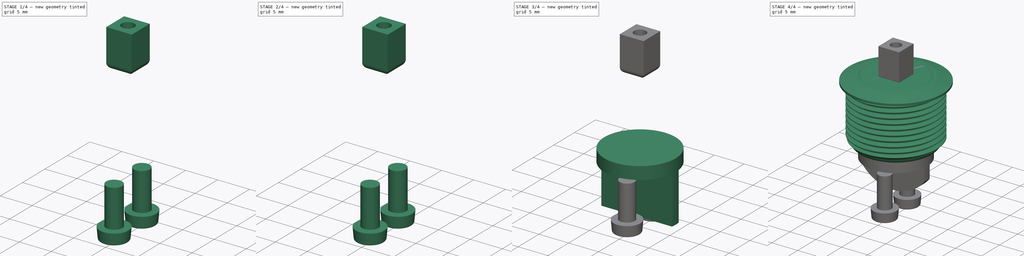
[diagram: build sequence overview — one tinted view per stage of 4, left to right]
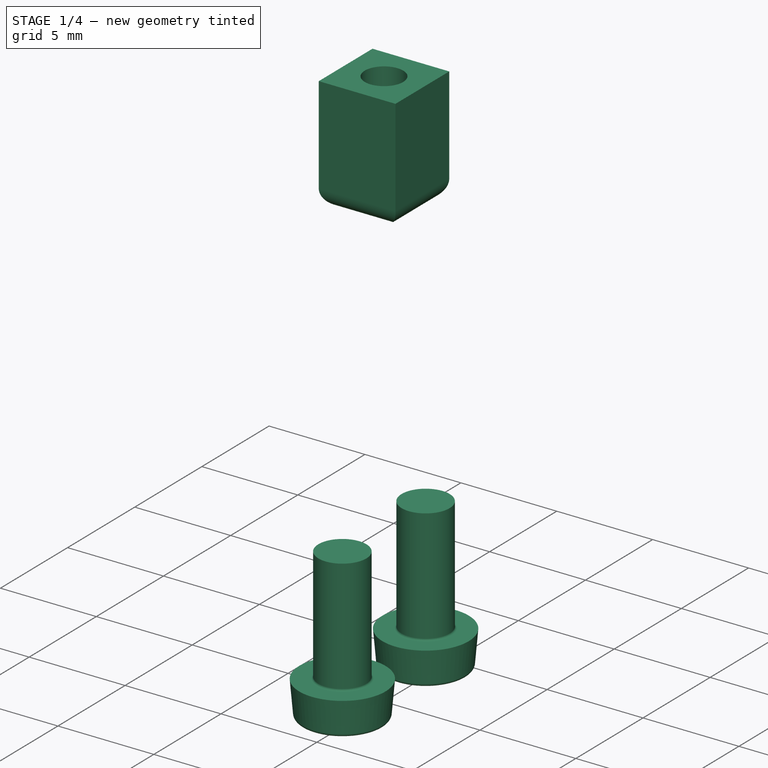
[diagram: stage 1 of 4 — iso view after this stage's code; geometry added in this stage tinted green]
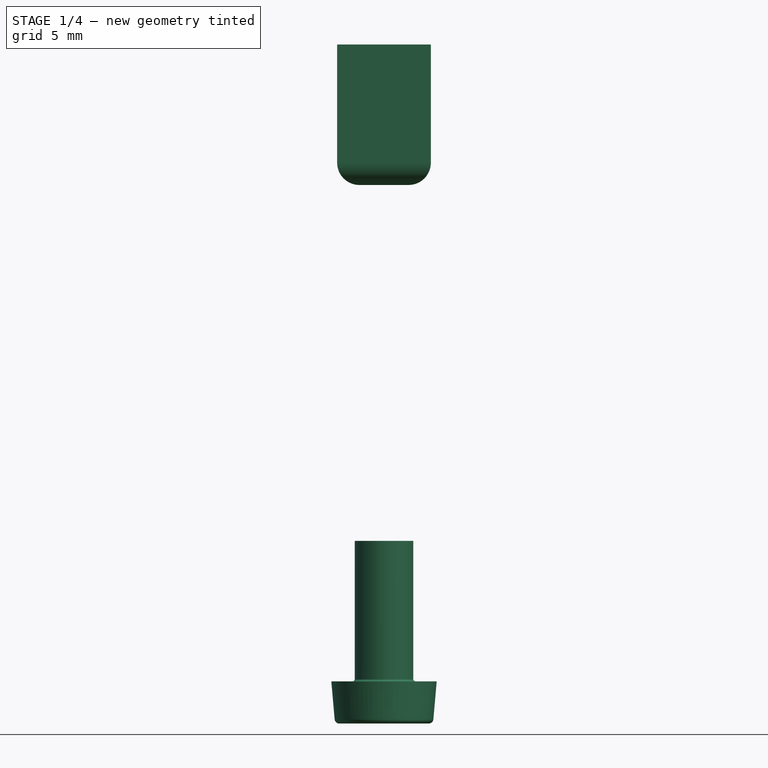
[diagram: stage 1 of 4 — front view after this stage's code; geometry added in this stage tinted green]
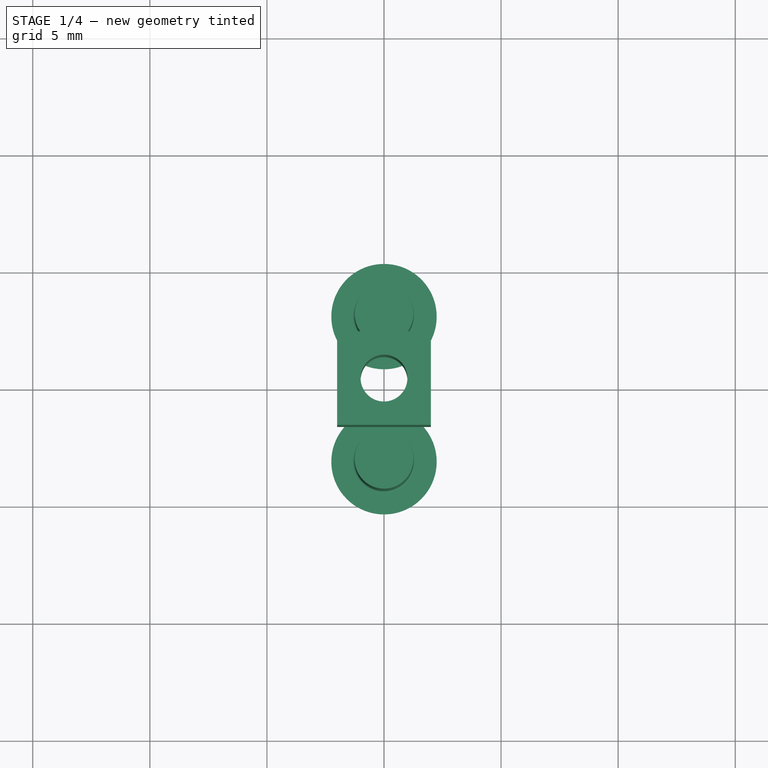
[diagram: stage 1 of 4 — top view after this stage's code; geometry added in this stage tinted green]
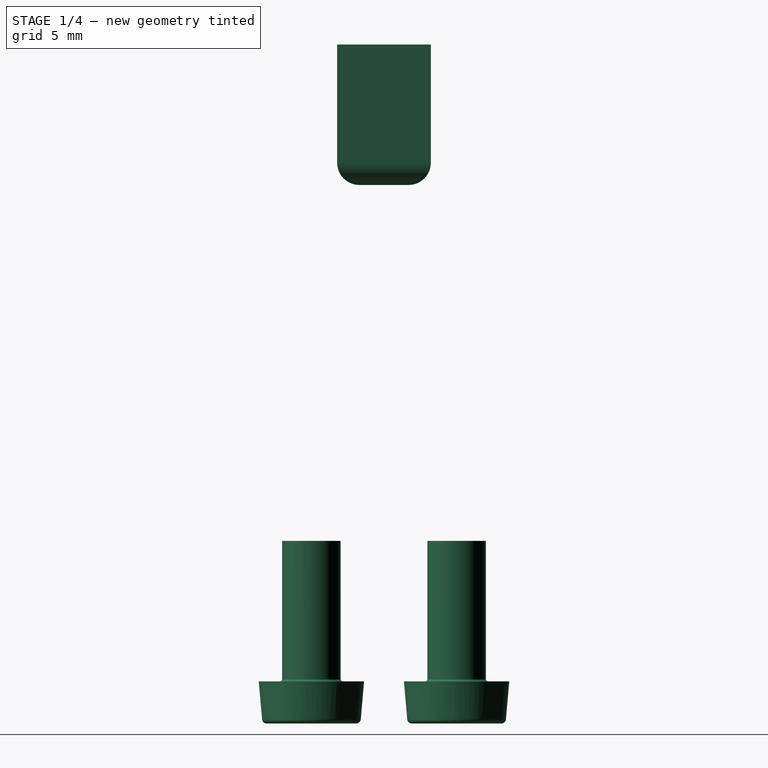
[diagram: stage 1 of 4 — right view after this stage's code; geometry added in this stage tinted green]
FCSTD DOCUMENT  (FreeCAD 0.21R33771 (Git))
Label: ButtonPushSwitch16mm
License: All rights reserved
LicenseURL: http://en.wikipedia.org/wiki/All_rights_reserved
objects: Sketcher::SketchObject×8, PartDesign::Body×6, Part::FeaturePython×3, PartDesign::Revolution×3, PartDesign::Pad×3, PartDesign::Fillet×2, PartDesign::Hole×2, App::Part×2, PartDesign::Pocket×1, Part::Feature×1
note: 40 computed .brp shape members not serialized (recipe doc carries the construction recipe); baked Part::Feature solids carry a one-line shape summary decoded from their .brp

FEATURE [PartDesign::Body] Body004  label="Pin1"
  Group = -> [Sketch005,Pad001,Fillet,Hole]
  Origin = -> Origin004
  Placement = pos=(0,-3,-19) rot=(0,0,1;0rad)
  Tip = -> Hole
FEATURE [Sketcher::SketchObject] Sketch006
  FullyConstrained = true
  MapMode = 5
  Support = -> [XY_Plane005]
  sketch-geometry (5):
    g0: LineSegment StartX=-2 StartY=-2 StartZ=0 EndX=2 EndY=-2 EndZ=0
    g1: LineSegment StartX=2 StartY=-2 StartZ=0 EndX=2 EndY=2 EndZ=0
    g2: LineSegment StartX=2 StartY=2 StartZ=0 EndX=-2 EndY=2 EndZ=0
    g3: LineSegment StartX=-2 StartY=2 StartZ=0 EndX=-2 EndY=-2 EndZ=0
    g4: Circle CenterX=0 CenterY=0 CenterZ=0 NormalX=0 NormalY=0 NormalZ=1 AngleXU=0 Radius=1
  constraints (12):
    c: Coincident(g0,g1)
    c: Coincident(g1,g2)
    c: Coincident(g2,g3)
    c: Coincident(g3,g0)
    c: Horizontal(g0)
    c: Vertical(g3)
    c: Equal(g2,g1)
    c: DistanceX(g2,g2) = 4
    c: Symmetric(g2,g1,g-2)
    c: Symmetric(g1,g0,g-1)
    c: Coincident(g4,g-1)
    c: Radius(g4) = 1
FEATURE [PartDesign::Pad] Pad002
  Direction = (0,0,1)
  Length = 6
  Length2 = 10
  Profile = -> Sketch006
  ReferenceAxis = -> Sketch006 [N_Axis]
  Type = 0
FEATURE [PartDesign::Fillet] Fillet001
  Base = -> Pad002 [Edge11,Edge3,Edge6,Edge9]
  BaseFeature = -> Pad002
  Radius = 0.95
  SupportTransform = false
  UseAllEdges = false
FEATURE [PartDesign::Body] Body005  label="Pin2"
  Group = -> [Sketch006,Pad002,Fillet001,Hole001]
  Origin = -> Origin005
  Placement = pos=(0,3,-19) rot=(0,0,1;0rad)
  Tip = -> Hole001
FEATURE [Part::FeaturePython] Screw  label="M2.5x6-Screw"  # Fasteners workbench fastener (typed FeaturePython)
  Placement = pos=(2.6e-15,3.1,-21.2) rot=(0,1,0;3.14159rad)
  diameter = 1
  invert = false
  leftHanded = false
  length = 3
  lengthCustom = 6
  matchOuter = false
  offset = 0
  thread = false
  type = 78
FEATURE [Part::FeaturePython] Screw001  label="M2.5x6-Screw001"  # Fasteners workbench fastener (typed FeaturePython)
  Placement = pos=(0,-3.1,-21.2) rot=(1,0,0;3.14159rad)
  diameter = 1
  invert = false
  leftHanded = false
  length = 3
  lengthCustom = 6
  matchOuter = false
  offset = 0
  thread = false
  type = 78
FEATURE [Part::Feature] Part__Feature001  label="Fix"
  Placement = pos=(1.76207,-2.99075,7.6065) rot=(0,0,1;0rad)
  shape: bbox 23.06 x 22 x 3.673 mm, 24 faces (baked)
FEATURE [App::Part] Assembly_1  label="Hexagon"
  Group = -> [Part__Feature001]
  Origin = -> Origin006
  Placement = pos=(-1.7,3.1,-13.2) rot=(0,0,1;0rad)
FEATURE [Sketcher::SketchObject] Sketch007
  FullyConstrained = true
  MapMode = 5
  Placement = pos=(0,0,0) rot=(0.57735,0.57735,0.57735;2.0944rad)
  Support = -> [YZ_Plane]
FEATURE [PartDesign::Body] Body001  label="Head"
  Group = -> [Sketch,Revolution,Sketch007]
  Origin = -> Origin
  Tip = -> Revolution
FEATURE [App::Part] Part  label="Assembly"
  Group = -> [Body,ThreadedRod,Body001,Body002,Body003,Body004,Body005,Screw,Screw001,Assembly_1]
  Origin = -> Origin007
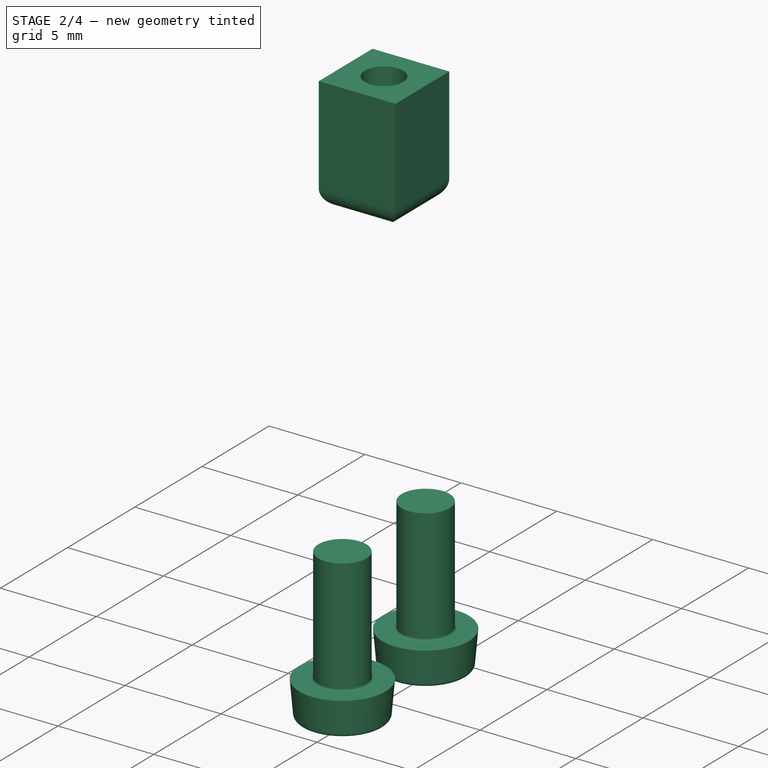
[diagram: stage 2 of 4 — iso view after this stage's code; geometry added in this stage tinted green]
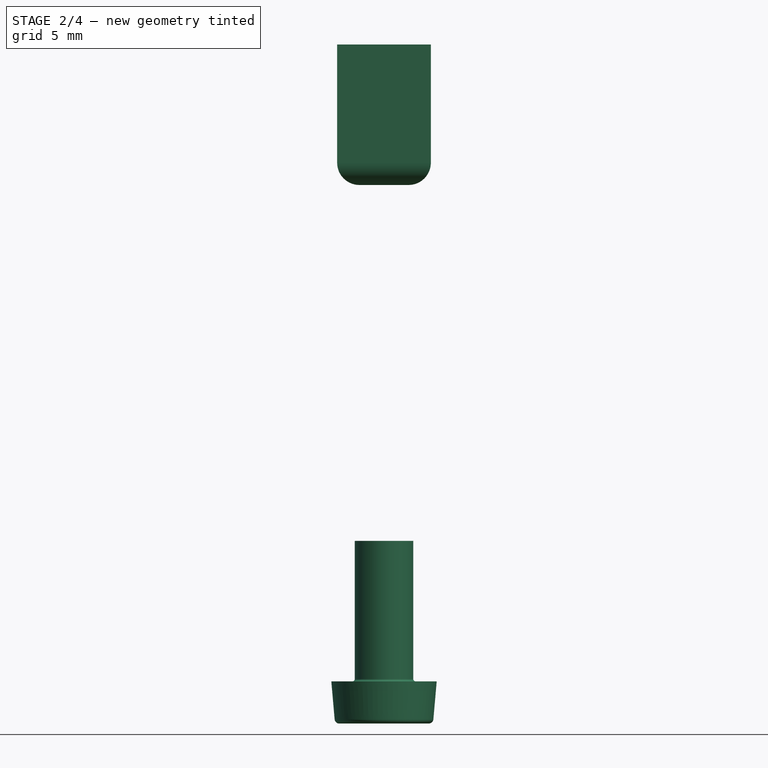
[diagram: stage 2 of 4 — front view after this stage's code; geometry added in this stage tinted green]
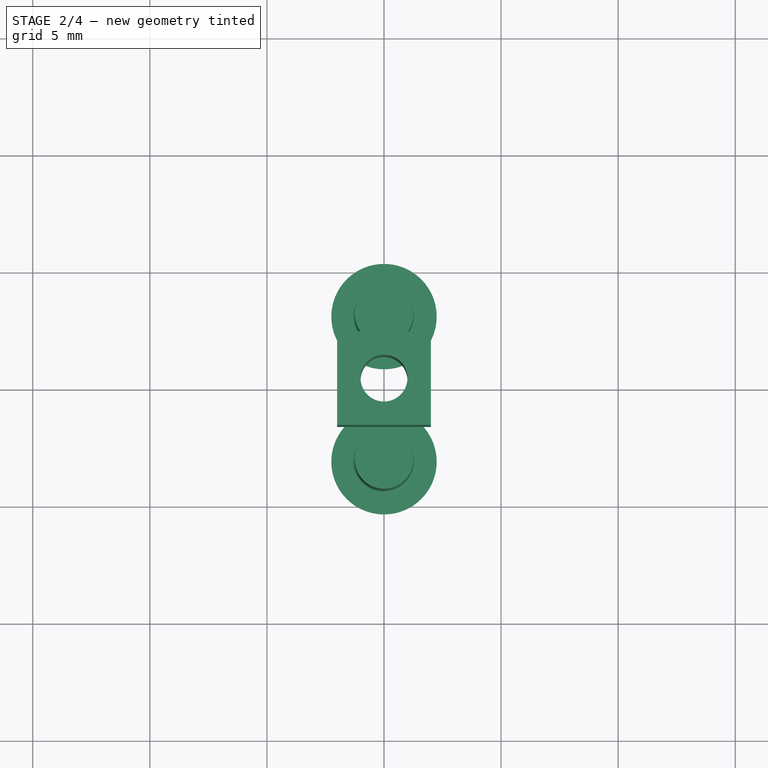
[diagram: stage 2 of 4 — top view after this stage's code; geometry added in this stage tinted green]
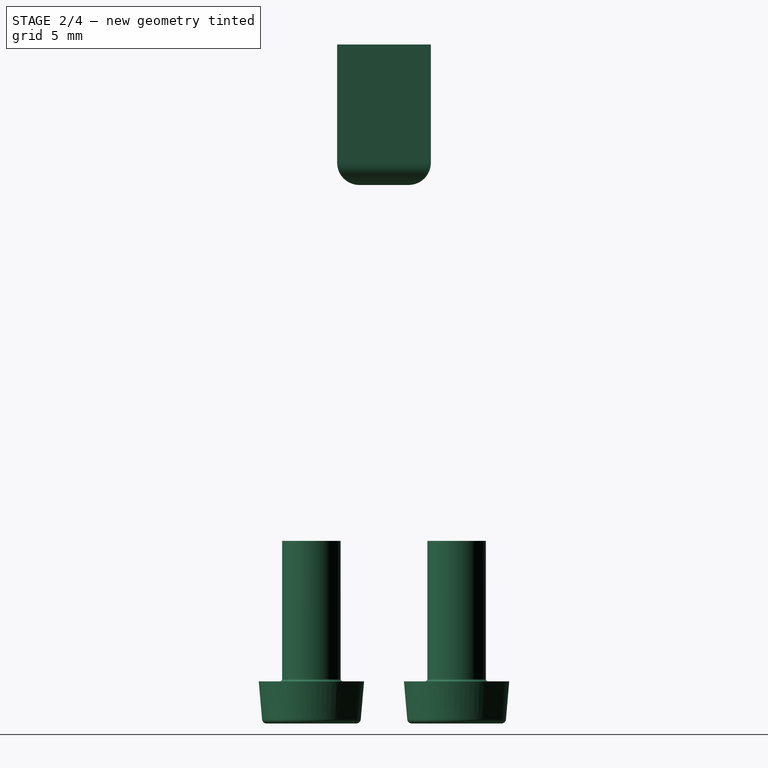
[diagram: stage 2 of 4 — right view after this stage's code; geometry added in this stage tinted green]
FEATURE [PartDesign::Body] Body003  label="Insulator"
  Group = -> [Sketch002,Revolution002,Sketch003,Pad,Sketch004,Pocket]
  Origin = -> Origin003
  Tip = -> Pocket
FEATURE [Sketcher::SketchObject] Sketch005
  FullyConstrained = true
  MapMode = 5
  Support = -> [XY_Plane004]
  sketch-geometry (5):
    g0: LineSegment StartX=-2 StartY=-2 StartZ=0 EndX=2 EndY=-2 EndZ=0
    g1: LineSegment StartX=2 StartY=-2 StartZ=0 EndX=2 EndY=2 EndZ=0
    g2: LineSegment StartX=2 StartY=2 StartZ=0 EndX=-2 EndY=2 EndZ=0
    g3: LineSegment StartX=-2 StartY=2 StartZ=0 EndX=-2 EndY=-2 EndZ=0
    g4: Circle CenterX=0 CenterY=0 CenterZ=0 NormalX=0 NormalY=0 NormalZ=1 AngleXU=0 Radius=1
  constraints (12):
    c: Coincident(g0,g1)
    c: Coincident(g1,g2)
    c: Coincident(g2,g3)
    c: Coincident(g3,g0)
    c: Horizontal(g0)
    c: Vertical(g3)
    c: Equal(g2,g1)
    c: DistanceX(g2,g2) = 4
    c: Symmetric(g2,g1,g-2)
    c: Symmetric(g1,g0,g-1)
    c: Coincident(g4,g-1)
    c: Radius(g4) = 1
FEATURE [PartDesign::Pad] Pad001
  Direction = (0,0,1)
  Length = 6
  Length2 = 10
  Profile = -> Sketch005
  ReferenceAxis = -> Sketch005 [N_Axis]
  Type = 0
FEATURE [PartDesign::Fillet] Fillet
  Base = -> Pad001 [Edge11,Edge3,Edge6,Edge9]
  BaseFeature = -> Pad001
  Radius = 0.95
  SupportTransform = false
  UseAllEdges = false
FEATURE [PartDesign::Hole] Hole001
  BaseFeature = -> Fillet001
  CustomThreadClearance = 0
  Depth = 16.6573
  DepthType = 0
  Diameter = 2.15
  DrillForDepth = false
  DrillPoint = 1
  DrillPointAngle = 118
  HoleCutCountersinkAngle = 90
  HoleCutCustomValues = false
  HoleCutDepth = 0
  HoleCutDiameter = 6.1
  HoleCutType = 0
  ModelThread = false
  Profile = -> Fillet001 [Edge21]
  Tapered = false
  TaperedAngle = 90
  ThreadClass = 0
  ThreadDepth = 16.6573
  ThreadDepthType = 0
  ThreadDirection = 0
  ThreadFit = 0
  ThreadSize = 8
  ThreadType = 2
  Threaded = true
  UseCustomThreadClearance = false
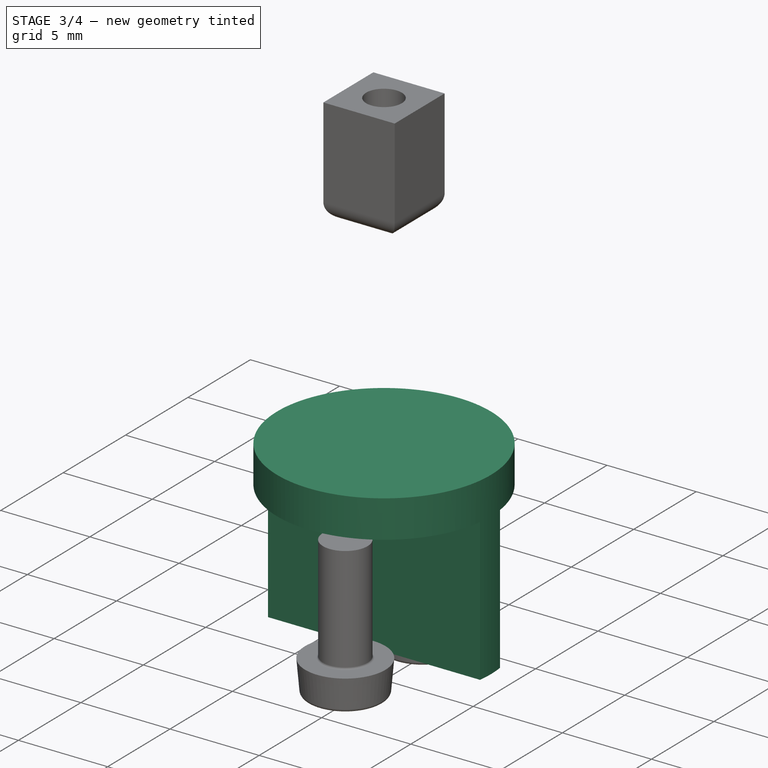
[diagram: stage 3 of 4 — iso view after this stage's code; geometry added in this stage tinted green]
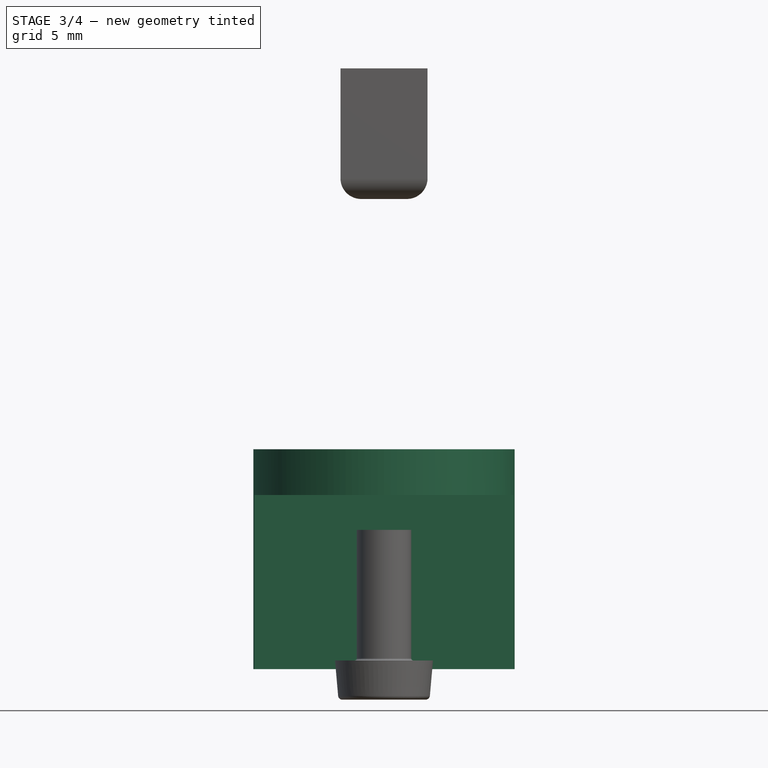
[diagram: stage 3 of 4 — front view after this stage's code; geometry added in this stage tinted green]
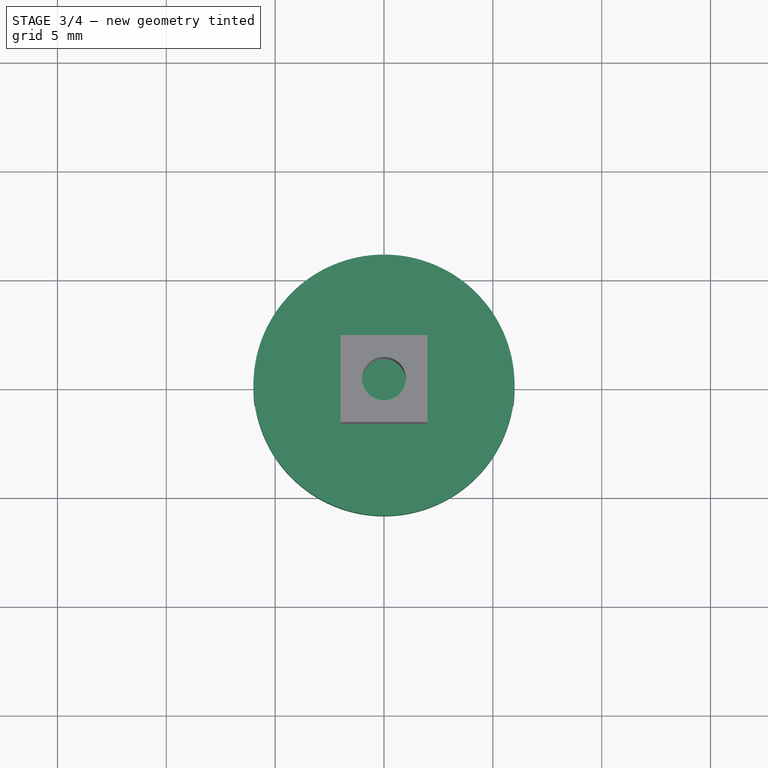
[diagram: stage 3 of 4 — top view after this stage's code; geometry added in this stage tinted green]
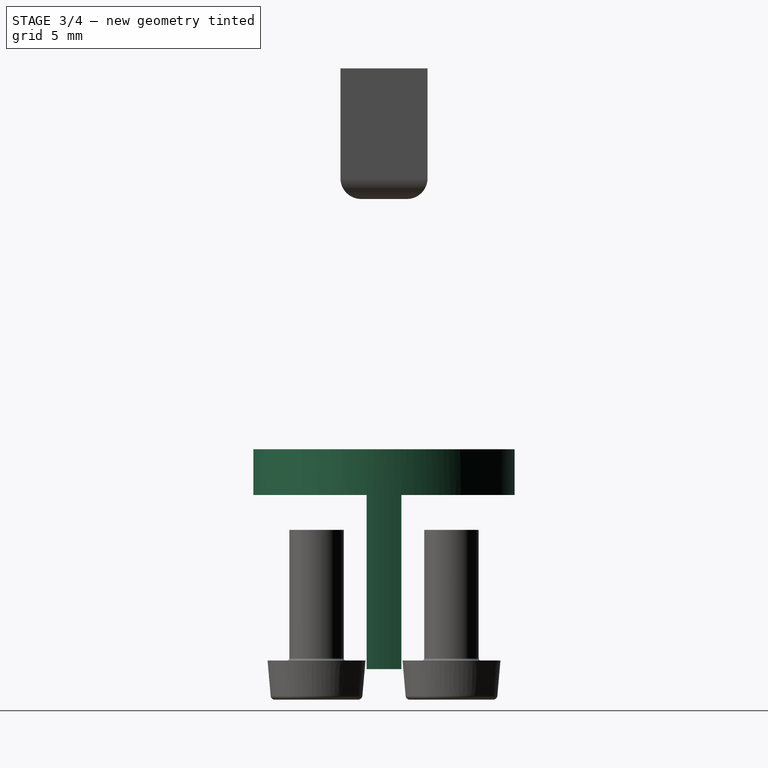
[diagram: stage 3 of 4 — right view after this stage's code; geometry added in this stage tinted green]
FEATURE [PartDesign::Body] Body002  label="Bottom"
  Group = -> [Sketch001,Revolution001]
  Origin = -> Origin002
  Tip = -> Revolution001
FEATURE [Sketcher::SketchObject] Sketch002
  FullyConstrained = true
  MapMode = 5
  Placement = pos=(0,0,0) rot=(0.57735,0.57735,0.57735;2.0944rad)
  Support = -> [YZ_Plane003]
  sketch-geometry (4):
    g0: LineSegment StartX=0 StartY=-11.5 StartZ=0 EndX=-6 EndY=-11.5 EndZ=0
    g1: LineSegment StartX=-6 StartY=-11.5 StartZ=0 EndX=-6 EndY=-13.6 EndZ=0
    g2: LineSegment StartX=0 StartY=-11.5 StartZ=0 EndX=0 EndY=-13.6 EndZ=0
    g3: LineSegment StartX=0 StartY=-13.6 StartZ=0 EndX=-6 EndY=-13.6 EndZ=0
  constraints (12):
    c: PointOnObject(g0,g-2)
    c: Horizontal(g0)
    c: DistanceY(g0) = -11.5
    c: DistanceX(g0,g0) = 6
    c: Coincident(g1,g0)
    c: Vertical(g1)
    c: Coincident(g2,g0)
    c: PointOnObject(g2,g-2)
    c: DistanceY(g2,g2) = 2.1
    c: Coincident(g3,g2)
    c: Coincident(g3,g1)
    c: Horizontal(g3)
FEATURE [PartDesign::Revolution] Revolution002
  Angle = 360
  Axis = (-2e-16,3e-16,1)
  Base = (0,0,0)
  Placement = pos=(0,0,0) rot=(0.57735,0.57735,0.57735;2.0944rad)
  Profile = -> Sketch002
  ReferenceAxis = -> Sketch002 [V_Axis]
FEATURE [Sketcher::SketchObject] Sketch003
  FullyConstrained = true
  MapMode = 5
  Placement = pos=(6e-15,-3.8e-15,-13.6) rot=(0.707107,0.707107,0;3.14159rad)
  Support = -> [Revolution002]
  sketch-geometry (4):
    g0: ArcOfCircle CenterX=0 CenterY=0 CenterZ=0 NormalX=0 NormalY=0 NormalZ=1 AngleXU=0 Radius=6 StartAngle=1.43706 EndAngle=1.70453
    g1: ArcOfCircle CenterX=0 CenterY=0 CenterZ=0 NormalX=0 NormalY=0 NormalZ=1 AngleXU=0 Radius=6 StartAngle=4.57866 EndAngle=4.84612
    g2: LineSegment StartX=-0.8 StartY=5.94643 StartZ=0 EndX=-0.8 EndY=-5.94643 EndZ=0
    g3: LineSegment StartX=0.8 StartY=-5.94643 StartZ=0 EndX=0.8 EndY=5.94643 EndZ=0
  constraints (12):
    c: Coincident(g0,g-1)
    c: Coincident(g1,g0)
    c: Radius(g0) = 6
    c: Coincident(g2,g0)
    c: Coincident(g2,g1)
    c: Coincident(g3,g1)
    c: Coincident(g3,g0)
    c: Vertical(g3)
    c: DistanceX(g0,g0) = 1.6
    c: Equal(g2,g3)
    c: Vertical(g2)
    c: Radius(g1) = 6
FEATURE [PartDesign::Pad] Pad
  BaseFeature = -> Revolution002
  Direction = (6e-16,-4e-16,-1)
  Length = 8
  Length2 = 10
  Placement = pos=(0,0,0) rot=(0.57735,0.57735,0.57735;2.0944rad)
  Profile = -> Sketch003
  ReferenceAxis = -> Sketch003 [N_Axis]
  Type = 0
FEATURE [PartDesign::Hole] Hole
  BaseFeature = -> Fillet
  CustomThreadClearance = 0
  Depth = 16.6573
  DepthType = 0
  Diameter = 2.15
  DrillForDepth = false
  DrillPoint = 1
  DrillPointAngle = 118
  HoleCutCountersinkAngle = 90
  HoleCutCustomValues = false
  HoleCutDepth = 0
  HoleCutDiameter = 6.1
  HoleCutType = 0
  ModelThread = false
  Profile = -> Fillet [Edge21]
  Tapered = false
  TaperedAngle = 90
  ThreadClass = 0
  ThreadDepth = 16.6573
  ThreadDepthType = 0
  ThreadDirection = 0
  ThreadFit = 0
  ThreadSize = 8
  ThreadType = 2
  Threaded = true
  UseCustomThreadClearance = false
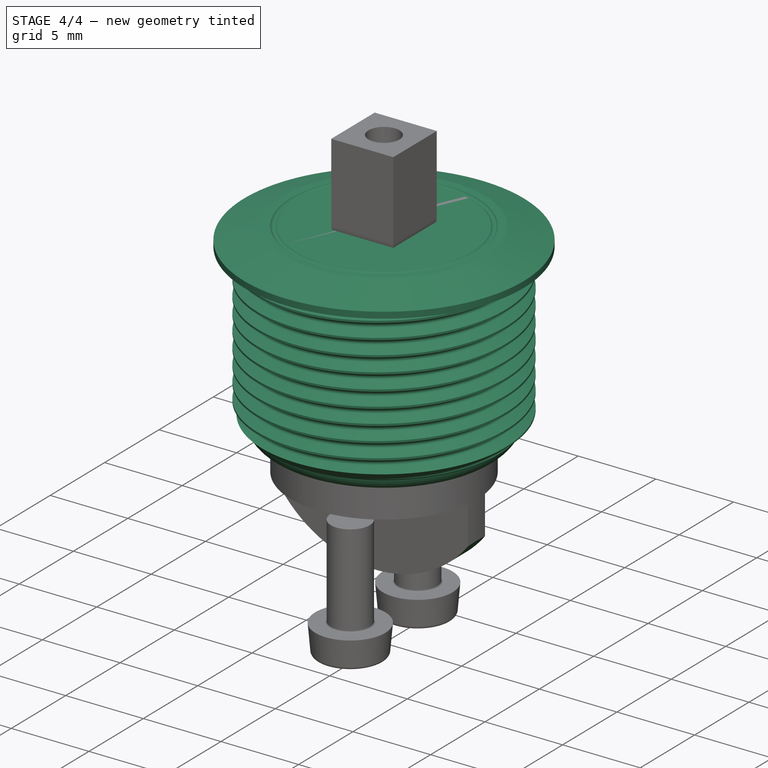
[diagram: stage 4 of 4 — iso view after this stage's code; geometry added in this stage tinted green]
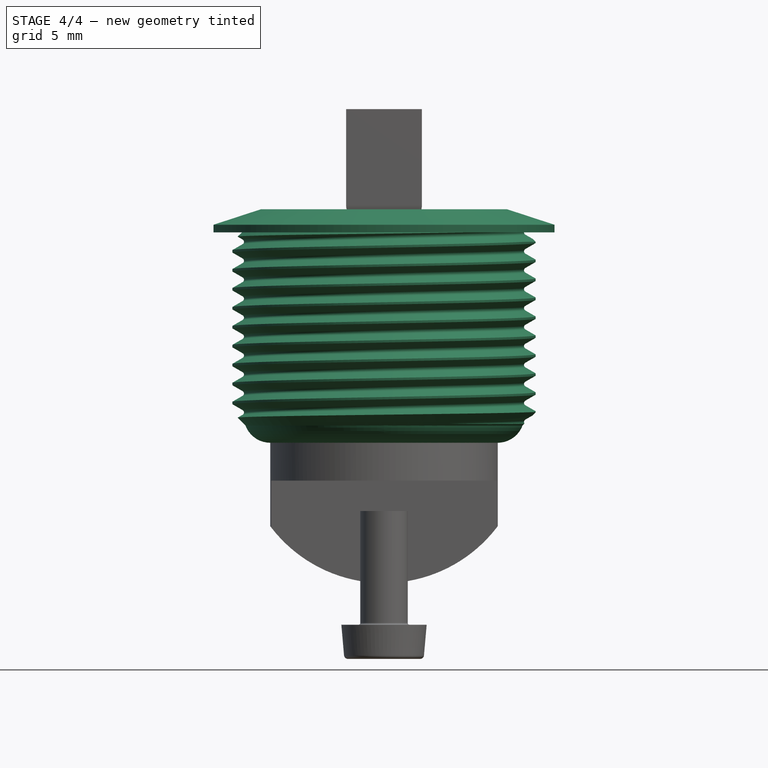
[diagram: stage 4 of 4 — front view after this stage's code; geometry added in this stage tinted green]
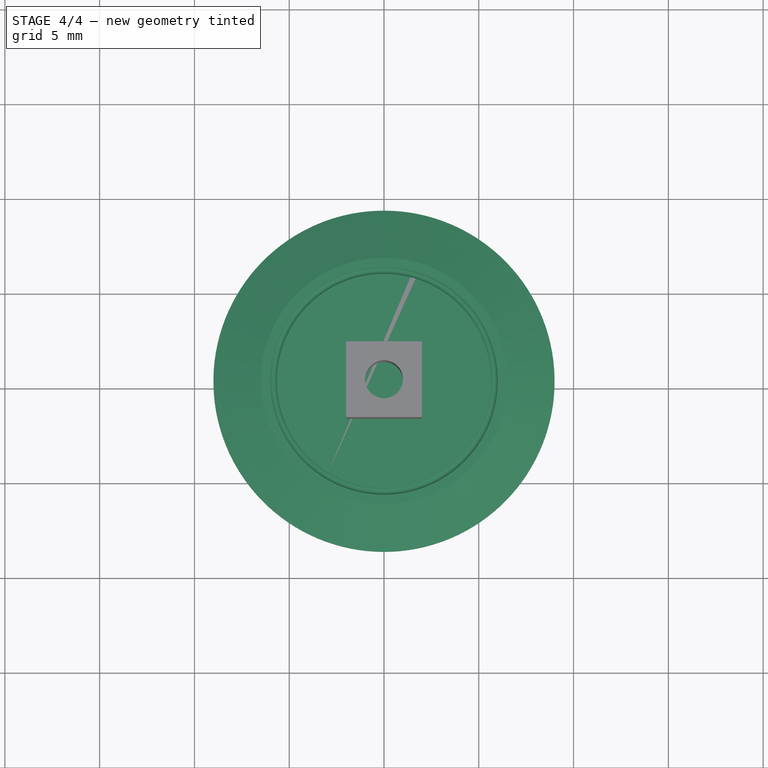
[diagram: stage 4 of 4 — top view after this stage's code; geometry added in this stage tinted green]
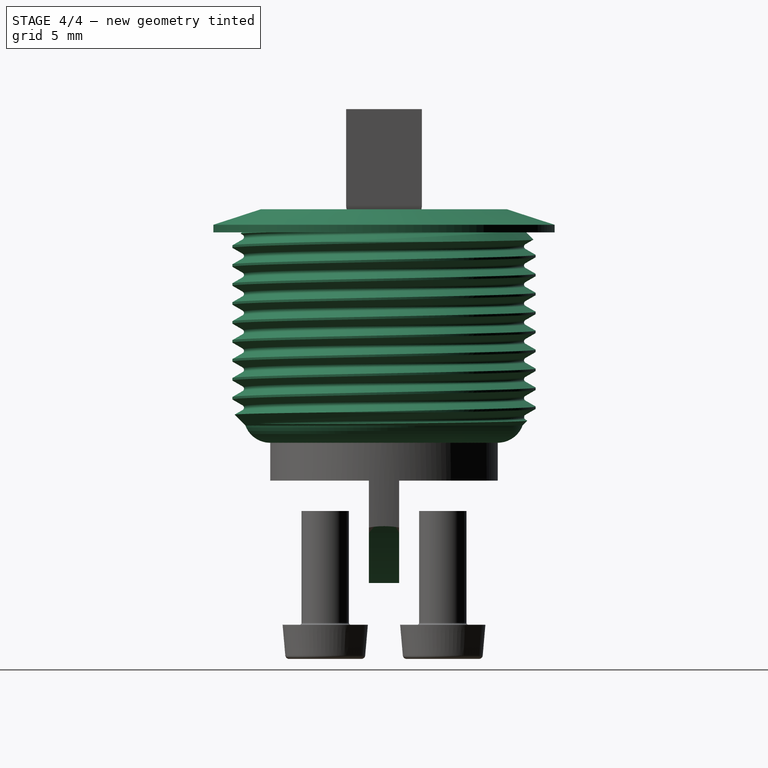
[diagram: stage 4 of 4 — right view after this stage's code; geometry added in this stage tinted green]
FEATURE [PartDesign::Body] Body  label="ThreadedBody"
  Origin = -> Origin001
FEATURE [Part::FeaturePython] ThreadedRod  label="16x11-ThreadedRod"  # Fasteners workbench fastener (typed FeaturePython)
  diameter = 29
  diameterCustom = 16
  invert = false
  leftHanded = false
  length = 11
  matchOuter = false
  offset = 0
  pitchCustom = 1
  thread = true
  type = 4
FEATURE [Sketcher::SketchObject] Sketch
  FullyConstrained = true
  MapMode = 5
  Placement = pos=(0,0,0) rot=(0.57735,0.57735,0.57735;2.0944rad)
  Support = -> [YZ_Plane]
  sketch-geometry (7):
    g0: LineSegment StartX=0 StartY=0.7 StartZ=0 EndX=0 EndY=-0.5 EndZ=0
    g1: LineSegment StartX=0 StartY=-0.5 StartZ=0 EndX=-9 EndY=-0.5 EndZ=0
    g2: LineSegment StartX=-9 StartY=-0.5 StartZ=0 EndX=-9 EndY=-0.1 EndZ=0
    g3: ArcOfCircle CenterX=-5.82219 CenterY=0.808204 CenterZ=0 NormalX=0 NormalY=0 NormalZ=1 AngleXU=0 Radius=0.2 StartAngle=3.61714 EndAngle=5.71153
    g4: LineSegment StartX=-5.65399 StartY=0.7 StartZ=0 EndX=0 EndY=0.7 EndZ=0
    g5: LineSegment StartX=-6 StartY=0.716639 StartZ=0 EndX=-6.5 EndY=0.716639 EndZ=0
    g6: LineSegment StartX=-6.5 StartY=0.716639 StartZ=0 EndX=-9 EndY=-0.1 EndZ=0
  constraints (22):
    c: PointOnObject(g0,g-2)
    c: PointOnObject(g0,g-2)
    c: Coincident(g1,g0)
    c: Horizontal(g1)
    c: Coincident(g2,g1)
    c: DistanceY(g0) = -0.5
    c: Vertical(g2)
    c: DistanceY(g2,g2) = 0.4
    c: DistanceX(g1) = -9
    c: DistanceX(g3) = -6
    c: Coincident(g4,g3)
    c: Horizontal(g4)
    c: Coincident(g0,g4)
    c: DistanceY(g0) = 0.7
    c: Radius(g3) = 0.2
    c: Angle(g3) = 2.0944
    c: Coincident(g5,g3)
    c: Horizontal(g5)
    c: Coincident(g6,g5)
    c: Coincident(g6,g2)
    c: DistanceX(g5,g5) = 0.5
    c: Distance(g6) = 2.63
FEATURE [PartDesign::Revolution] Revolution
  Angle = 360
  Axis = (-2e-16,3e-16,1)
  Base = (0,0,0)
  Placement = pos=(0,0,0) rot=(0.57735,0.57735,0.57735;2.0944rad)
  Profile = -> Sketch
  ReferenceAxis = -> Sketch [V_Axis]
FEATURE [Sketcher::SketchObject] Sketch001
  FullyConstrained = true
  MapMode = 5
  Placement = pos=(0,0,0) rot=(0.57735,0.57735,0.57735;2.0944rad)
  Support = -> [YZ_Plane002]
  sketch-geometry (4):
    g0: LineSegment StartX=0 StartY=-10.2 StartZ=0 EndX=0 EndY=-11.6 EndZ=0
    g1: LineSegment StartX=0 StartY=-11.6 StartZ=0 EndX=-6 EndY=-11.6 EndZ=0
    g2: ArcOfCircle CenterX=-6 CenterY=-10.2 CenterZ=0 NormalX=0 NormalY=0 NormalZ=1 AngleXU=0 Radius=1.4 StartAngle=3.14159 EndAngle=4.71239
    g3: LineSegment StartX=-7.4 StartY=-10.2 StartZ=0 EndX=0 EndY=-10.2 EndZ=0
  constraints (12):
    c: PointOnObject(g0,g-2)
    c: PointOnObject(g0,g-2)
    c: Coincident(g1,g0)
    c: Horizontal(g1)
    c: Coincident(g3,g2)
    c: Coincident(g3,g0)
    c: Horizontal(g3)
    c: DistanceX(g1) = -6
    c: Perpendicular(g2,g3)
    c: DistanceX(g2) = -7.4
    c: Tangent(g2,g1) = 1.5708
    c: DistanceY(g0) = -10.2
FEATURE [PartDesign::Revolution] Revolution001
  Angle = 360
  Axis = (-2e-16,3e-16,1)
  Base = (0,0,0)
  Placement = pos=(0,0,0) rot=(0.57735,0.57735,0.57735;2.0944rad)
  Profile = -> Sketch001
  ReferenceAxis = -> Sketch001 [V_Axis]
FEATURE [Sketcher::SketchObject] Sketch004
  FullyConstrained = true
  MapMode = 5
  Placement = pos=(-4e-16,-0.8,3e-16) rot=(-0.57735,-0.57735,0.57735;4.18879rad)
  Support = -> [Pad]
  sketch-geometry (4):
    g0: LineSegment StartX=16 StartY=6 StartZ=0 EndX=22 EndY=6 EndZ=0
    g1: LineSegment StartX=22 StartY=6 StartZ=0 EndX=22 EndY=-6 EndZ=0
    g2: LineSegment StartX=22 StartY=-6 StartZ=0 EndX=16 EndY=-6 EndZ=0
    g3: ArcOfCircle CenterX=11.5 CenterY=-1.1e-15 CenterZ=0 NormalX=0 NormalY=0 NormalZ=1 AngleXU=0 Radius=7.5 StartAngle=5.35589 EndAngle=7.21048
  constraints (12):
    c: Horizontal(g0)
    c: Coincident(g1,g0)
    c: Coincident(g2,g1)
    c: Horizontal(g2)
    c: DistanceX(g0) = 16
    c: Equal(g0,g2)
    c: DistanceY(g1,g1) = 12
    c: Symmetric(g0,g1,g-1)
    c: DistanceX(g0,g0) = 6
    c: Coincident(g3,g0)
    c: Coincident(g3,g2)
    c: DistanceX(g3) = 11.5
FEATURE [PartDesign::Pocket] Pocket
  BaseFeature = -> Pad
  Direction = (4e-16,1,-4e-16)
  Length = 2
  Length2 = 5
  Placement = pos=(0,0,0) rot=(0.57735,0.57735,0.57735;2.0944rad)
  Profile = -> Sketch004
  ReferenceAxis = -> Sketch004 [N_Axis]
  Type = 0
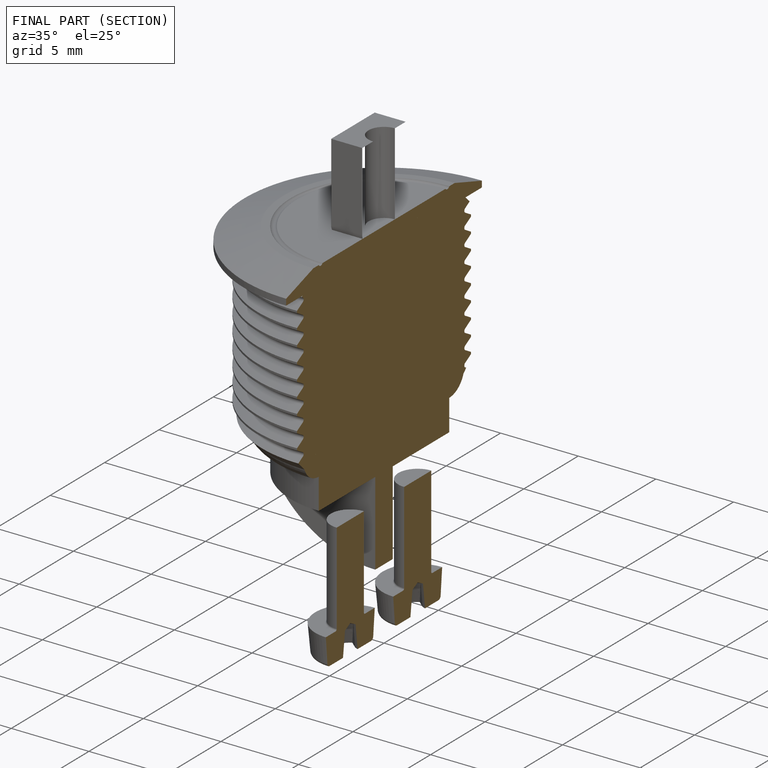
[diagram: finished part — half-section view (interior)]
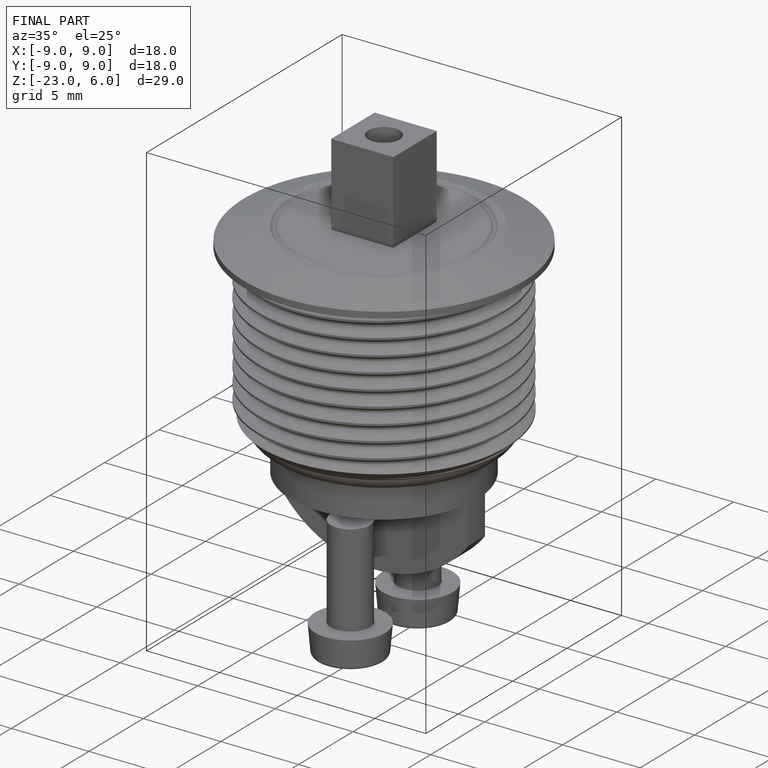
[diagram: finished part — iso view with bounding-box wireframe]
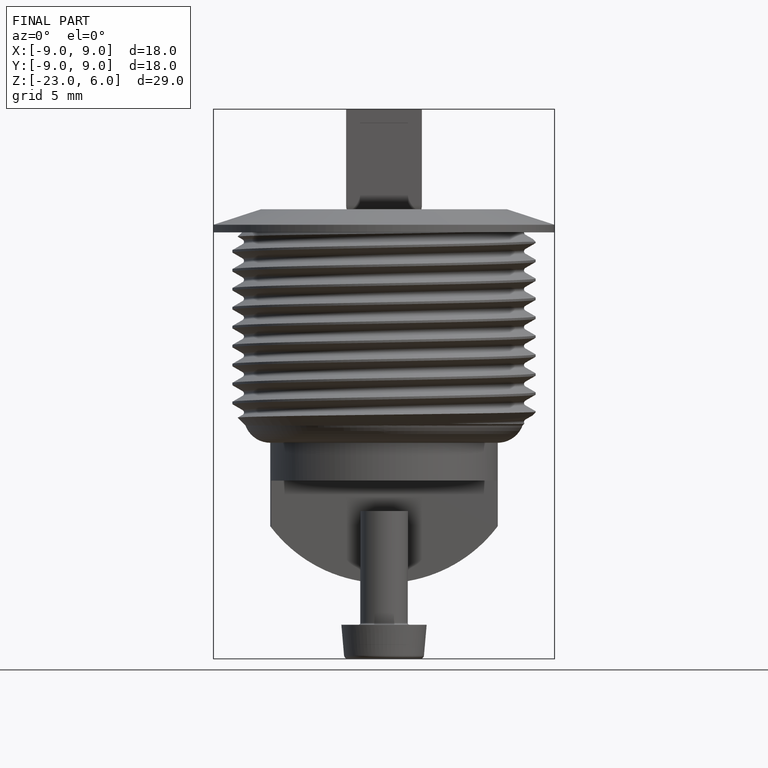
[diagram: finished part — front view with bounding-box wireframe]
